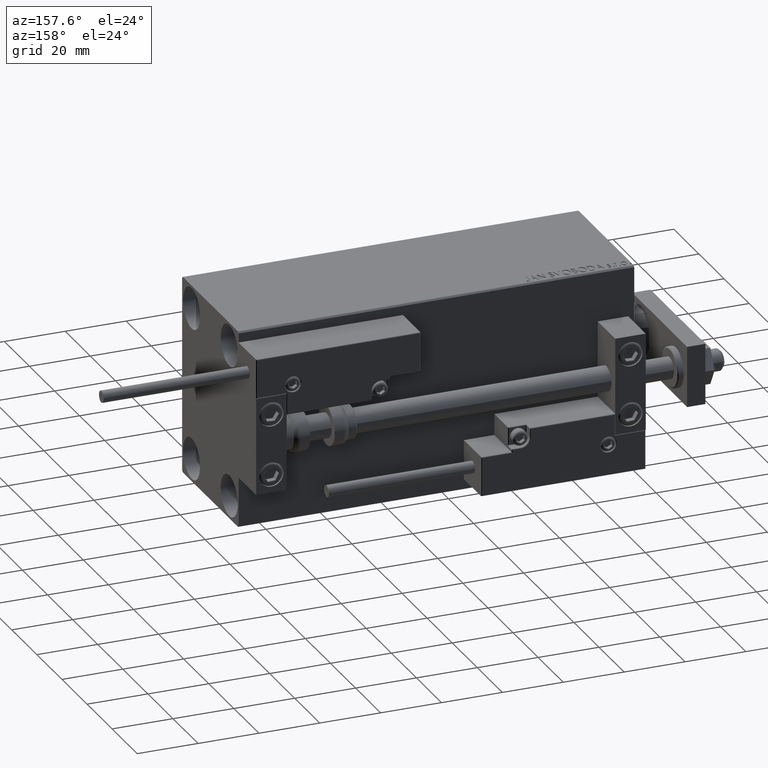
[diagram: clean part render]
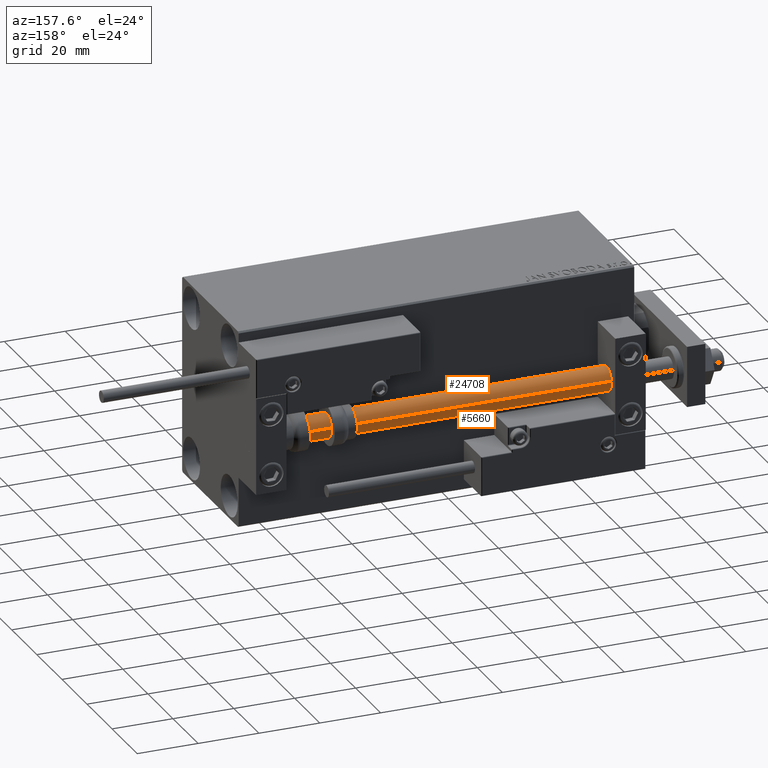
[diagram: same view with one multi-face feature highlighted, each face labeled with its STEP entity id]
A machine part, auxiliary view. The highlighted faces form ONE feature: a constant-radius fillet chain: 2 tangent blend faces with common blend radius 4 mm. The faces share edges in the B-rep.
Their STEP definitions:
[1] entity #5660 (Cylinder):
#187 = DIRECTION ( 'NONE',  ( 0.000000000000000000, 0.000000000000000000, 1.000000000000000000 ) ) ;
#996 = EDGE_CURVE ( 'NONE', #34997, #7088, #41238, .T. ) ;
#3490 = CARTESIAN_POINT ( 'NONE',  ( 0.000000000000000000, 0.000000000000000000, 130.0000000000000000 ) ) ;
#4960 = VECTOR ( 'NONE', #16140, 1000.000000000000000 ) ;
#5660 = ADVANCED_FACE ( 'NONE', ( #44203 ), #48017, .T. ) ;
#7088 = VERTEX_POINT ( 'NONE', #19172 ) ;
#7431 = CARTESIAN_POINT ( 'NONE',  ( 4.000000000000000000, 4.898587196589412829E-16, 130.0000000000000000 ) ) ;
#7776 = ORIENTED_EDGE ( 'NONE', *, *, #25897, .F. ) ;
#7782 = ORIENTED_EDGE ( 'NONE', *, *, #996, .T. ) ;
#10975 = DIRECTION ( 'NONE',  ( -0.000000000000000000, -0.000000000000000000, 1.000000000000000000 ) ) ;
#11347 = ORIENTED_EDGE ( 'NONE', *, *, #34211, .T. ) ;
#11500 = CIRCLE ( 'NONE', #22897, 4.000000000000000000 ) ;
#11874 = DIRECTION ( 'NONE',  ( 1.000000000000000000, 0.000000000000000000, 0.000000000000000000 ) ) ;
#12054 = LINE ( 'NONE', #35494, #4960 ) ;
#16140 = DIRECTION ( 'NONE',  ( -0.000000000000000000, -0.000000000000000000, -1.000000000000000000 ) ) ;
#17187 = CARTESIAN_POINT ( 'NONE',  ( 0.000000000000000000, 0.000000000000000000, 2.000000000000029310 ) ) ;
#18633 = DIRECTION ( 'NONE',  ( 1.000000000000000000, 0.000000000000000000, 0.000000000000000000 ) ) ;
#19172 = CARTESIAN_POINT ( 'NONE',  ( -4.000000000000000000, 0.000000000000000000, 2.000000000000029310 ) ) ;
#19806 = AXIS2_PLACEMENT_3D ( 'NONE', #17187, #10975, #18633 ) ;
#22845 = VECTOR ( 'NONE', #33852, 1000.000000000000000 ) ;
#22897 = AXIS2_PLACEMENT_3D ( 'NONE', #3490, #187, #11874 ) ;
#23887 = CIRCLE ( 'NONE', #19806, 4.000000000000000000 ) ;
#24432 = EDGE_CURVE ( 'NONE', #27366, #43169, #12054, .T. ) ;
#25897 = EDGE_CURVE ( 'NONE', #34997, #27366, #11500, .T. ) ;
#27366 = VERTEX_POINT ( 'NONE', #7431 ) ;
#29165 = CARTESIAN_POINT ( 'NONE',  ( -4.000000000000000000, 0.000000000000000000, 130.0000000000000000 ) ) ;
#30033 = CARTESIAN_POINT ( 'NONE',  ( -4.000000000000000000, 0.000000000000000000, 130.0000000000000000 ) ) ;
#31946 = AXIS2_PLACEMENT_3D ( 'NONE', #47531, #32017, #44453 ) ;
#32017 = DIRECTION ( 'NONE',  ( -0.000000000000000000, -0.000000000000000000, -1.000000000000000000 ) ) ;
#33852 = DIRECTION ( 'NONE',  ( -0.000000000000000000, -0.000000000000000000, -1.000000000000000000 ) ) ;
#34211 = EDGE_CURVE ( 'NONE', #7088, #43169, #23887, .T. ) ;
#34997 = VERTEX_POINT ( 'NONE', #29165 ) ;
#35494 = CARTESIAN_POINT ( 'NONE',  ( 4.000000000000000000, 4.898587196589412829E-16, 130.0000000000000000 ) ) ;
#39779 = ORIENTED_EDGE ( 'NONE', *, *, #24432, .F. ) ;
#41238 = LINE ( 'NONE', #30033, #22845 ) ;
#42873 = EDGE_LOOP ( 'NONE', ( #39779, #7776, #7782, #11347 ) ) ;
#43169 = VERTEX_POINT ( 'NONE', #49373 ) ;
#44203 = FACE_OUTER_BOUND ( 'NONE', #42873, .T. ) ;
#44453 = DIRECTION ( 'NONE',  ( -1.000000000000000000, 0.000000000000000000, 0.000000000000000000 ) ) ;
#47531 = CARTESIAN_POINT ( 'NONE',  ( 0.000000000000000000, 0.000000000000000000, 130.0000000000000000 ) ) ;
#48017 = CYLINDRICAL_SURFACE ( 'NONE', #31946, 4.000000000000000000 ) ;
#49373 = CARTESIAN_POINT ( 'NONE',  ( 4.000000000000000000, 4.898587196589412829E-16, 2.000000000000029310 ) ) ;
[2] entity #24708 (Cylinder):
#996 = EDGE_CURVE ( 'NONE', #34997, #7088, #41238, .T. ) ;
#1953 = EDGE_CURVE ( 'NONE', #27366, #34997, #41565, .T. ) ;
#2748 = CYLINDRICAL_SURFACE ( 'NONE', #28596, 4.000000000000000000 ) ;
#2955 = ORIENTED_EDGE ( 'NONE', *, *, #34592, .T. ) ;
#4960 = VECTOR ( 'NONE', #16140, 1000.000000000000000 ) ;
#6799 = CARTESIAN_POINT ( 'NONE',  ( 0.000000000000000000, 0.000000000000000000, 130.0000000000000000 ) ) ;
#7088 = VERTEX_POINT ( 'NONE', #19172 ) ;
#7431 = CARTESIAN_POINT ( 'NONE',  ( 4.000000000000000000, 4.898587196589412829E-16, 130.0000000000000000 ) ) ;
#10059 = ORIENTED_EDGE ( 'NONE', *, *, #24432, .T. ) ;
#12054 = LINE ( 'NONE', #35494, #4960 ) ;
#13988 = CARTESIAN_POINT ( 'NONE',  ( 0.000000000000000000, 0.000000000000000000, 130.0000000000000000 ) ) ;
#14251 = DIRECTION ( 'NONE',  ( 1.000000000000000000, 0.000000000000000000, 0.000000000000000000 ) ) ;
#16140 = DIRECTION ( 'NONE',  ( -0.000000000000000000, -0.000000000000000000, -1.000000000000000000 ) ) ;
#19172 = CARTESIAN_POINT ( 'NONE',  ( -4.000000000000000000, 0.000000000000000000, 2.000000000000029310 ) ) ;
#20076 = EDGE_LOOP ( 'NONE', ( #41972, #10059, #2955, #20819 ) ) ;
#20819 = ORIENTED_EDGE ( 'NONE', *, *, #996, .F. ) ;
#21599 = DIRECTION ( 'NONE',  ( -0.000000000000000000, -0.000000000000000000, -1.000000000000000000 ) ) ;
#22845 = VECTOR ( 'NONE', #33852, 1000.000000000000000 ) ;
#23071 = AXIS2_PLACEMENT_3D ( 'NONE', #44800, #33605, #41242 ) ;
#24432 = EDGE_CURVE ( 'NONE', #27366, #43169, #12054, .T. ) ;
#24708 = ADVANCED_FACE ( 'NONE', ( #41696 ), #2748, .T. ) ;
#26323 = CIRCLE ( 'NONE', #23071, 4.000000000000000000 ) ;
#27366 = VERTEX_POINT ( 'NONE', #7431 ) ;
#28596 = AXIS2_PLACEMENT_3D ( 'NONE', #6799, #21599, #33565 ) ;
#29165 = CARTESIAN_POINT ( 'NONE',  ( -4.000000000000000000, 0.000000000000000000, 130.0000000000000000 ) ) ;
#30033 = CARTESIAN_POINT ( 'NONE',  ( -4.000000000000000000, 0.000000000000000000, 130.0000000000000000 ) ) ;
#33463 = AXIS2_PLACEMENT_3D ( 'NONE', #13988, #49134, #14251 ) ;
#33565 = DIRECTION ( 'NONE',  ( -1.000000000000000000, 0.000000000000000000, 0.000000000000000000 ) ) ;
#33605 = DIRECTION ( 'NONE',  ( -0.000000000000000000, -0.000000000000000000, 1.000000000000000000 ) ) ;
#33852 = DIRECTION ( 'NONE',  ( -0.000000000000000000, -0.000000000000000000, -1.000000000000000000 ) ) ;
#34592 = EDGE_CURVE ( 'NONE', #43169, #7088, #26323, .T. ) ;
#34997 = VERTEX_POINT ( 'NONE', #29165 ) ;
#35494 = CARTESIAN_POINT ( 'NONE',  ( 4.000000000000000000, 4.898587196589412829E-16, 130.0000000000000000 ) ) ;
#41238 = LINE ( 'NONE', #30033, #22845 ) ;
#41242 = DIRECTION ( 'NONE',  ( 1.000000000000000000, 0.000000000000000000, 0.000000000000000000 ) ) ;
#41565 = CIRCLE ( 'NONE', #33463, 4.000000000000000000 ) ;
#41696 = FACE_OUTER_BOUND ( 'NONE', #20076, .T. ) ;
#41972 = ORIENTED_EDGE ( 'NONE', *, *, #1953, .F. ) ;
#43169 = VERTEX_POINT ( 'NONE', #49373 ) ;
#44800 = CARTESIAN_POINT ( 'NONE',  ( 0.000000000000000000, 0.000000000000000000, 2.000000000000029310 ) ) ;
#49134 = DIRECTION ( 'NONE',  ( 0.000000000000000000, 0.000000000000000000, 1.000000000000000000 ) ) ;
#49373 = CARTESIAN_POINT ( 'NONE',  ( 4.000000000000000000, 4.898587196589412829E-16, 2.000000000000029310 ) ) ;